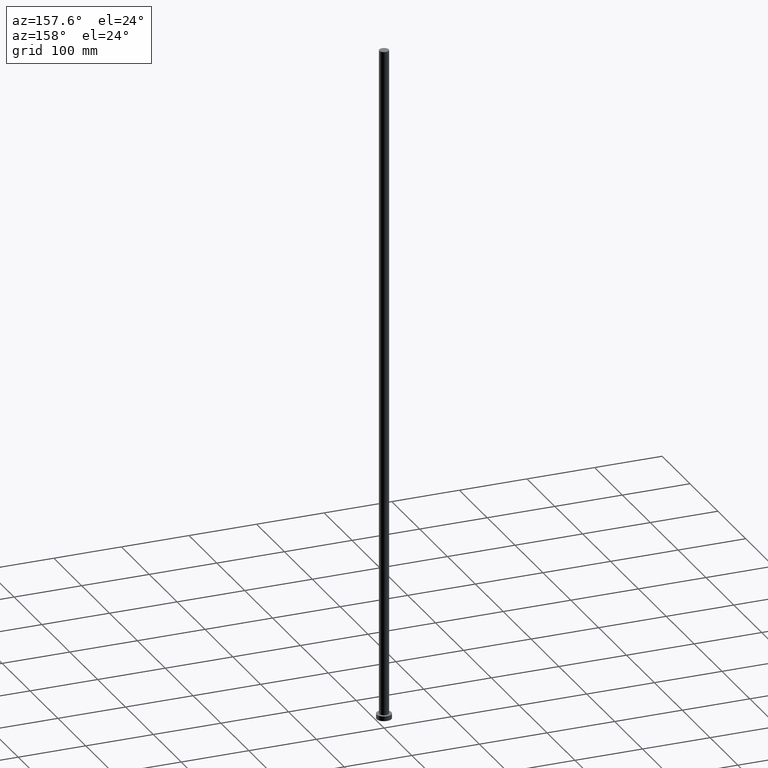
[diagram: clean part render]
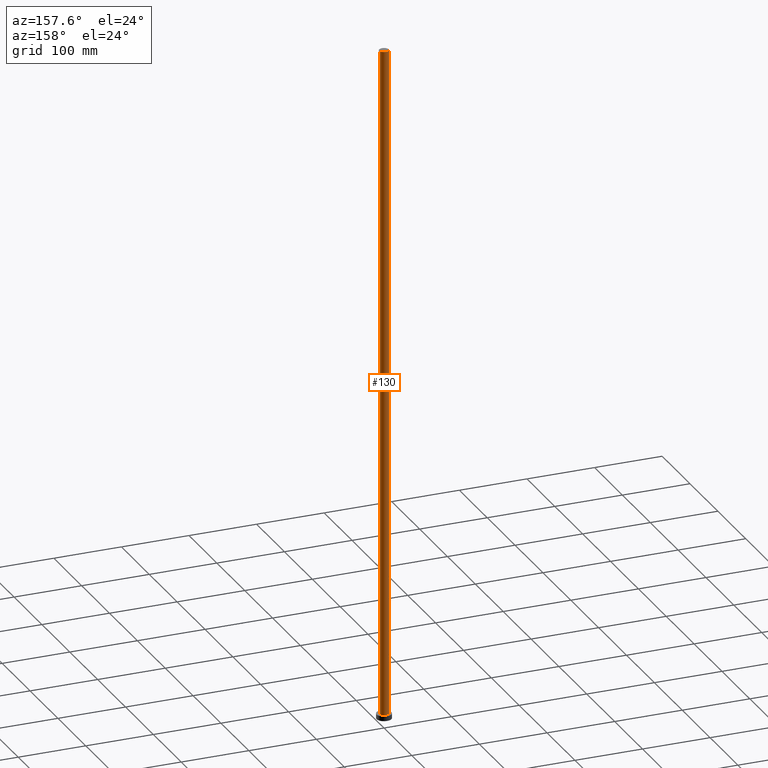
[diagram: same view with one face highlighted and labeled with its STEP entity id]
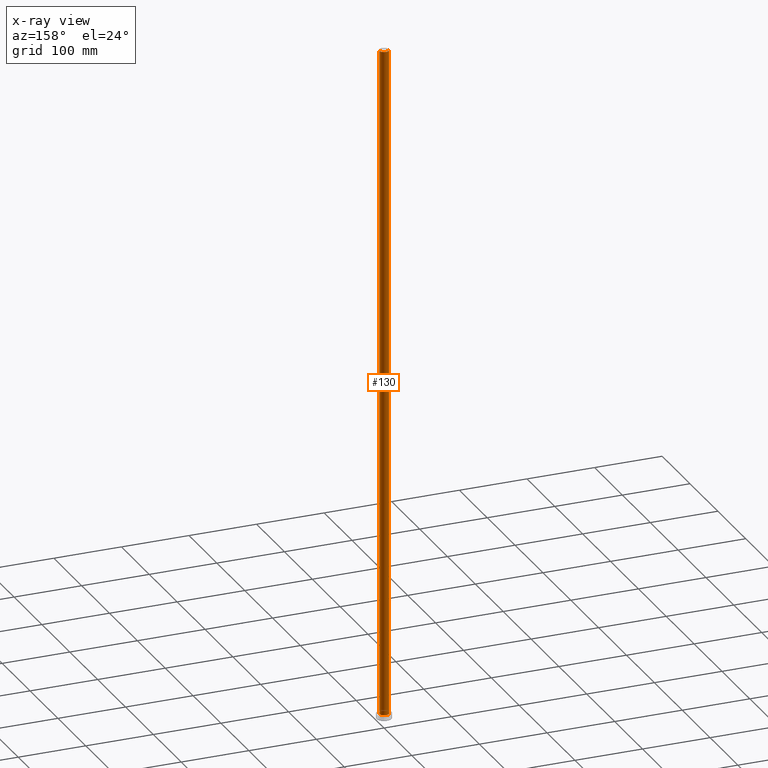
[diagram: x-ray of the same camera — body ghosted, the highlighted face saturated]
A machine part, auxiliary view. The second image highlights one B-rep face of the part: STEP entity #130.
The next image is the same camera in x-ray: the body ghosted, the highlighted face saturated — about 0% of this face is hidden behind the body in this view.
In plain terms, the highlighted cylindrical surface (edge-blend (fillet) strip) has radius 7 mm, axis along (-0, -0, -1).
Its self-contained STEP definition (entity closure, byte-faithful):
#2 = DIRECTION ( 'NONE',  ( -0.000000000000000000, -0.000000000000000000, -1.000000000000000000 ) ) ;
#14 = CIRCLE ( 'NONE', #230, 7.000000000000000888 ) ;
#30 = ORIENTED_EDGE ( 'NONE', *, *, #178, .F. ) ;
#34 = CIRCLE ( 'NONE', #177, 7.000000000000000888 ) ;
#36 = EDGE_CURVE ( 'NONE', #116, #94, #14, .T. ) ;
#68 = CYLINDRICAL_SURFACE ( 'NONE', #92, 7.000000000000000888 ) ;
#69 = VECTOR ( 'NONE', #2, 1000.000000000000000 ) ;
#71 = DIRECTION ( 'NONE',  ( -1.000000000000000000, 0.000000000000000000, 0.000000000000000000 ) ) ;
#82 = DIRECTION ( 'NONE',  ( -0.000000000000000000, -0.000000000000000000, -1.000000000000000000 ) ) ;
#83 = DIRECTION ( 'NONE',  ( 0.000000000000000000, 0.000000000000000000, 1.000000000000000000 ) ) ;
#87 = DIRECTION ( 'NONE',  ( 0.000000000000000000, 0.000000000000000000, 1.000000000000000000 ) ) ;
#92 = AXIS2_PLACEMENT_3D ( 'NONE', #220, #243, #71 ) ;
#93 = DIRECTION ( 'NONE',  ( 1.000000000000000000, 0.000000000000000000, 0.000000000000000000 ) ) ;
#94 = VERTEX_POINT ( 'NONE', #239 ) ;
#100 = EDGE_CURVE ( 'NONE', #185, #94, #122, .T. ) ;
#116 = VERTEX_POINT ( 'NONE', #237 ) ;
#122 = LINE ( 'NONE', #179, #69 ) ;
#130 = ADVANCED_FACE ( 'NONE', ( #198 ), #68, .T. ) ;
#134 = CARTESIAN_POINT ( 'NONE',  ( 0.000000000000000000, 0.000000000000000000, 7.000000000000000000 ) ) ;
#144 = ORIENTED_EDGE ( 'NONE', *, *, #100, .F. ) ;
#159 = CARTESIAN_POINT ( 'NONE',  ( 7.000000000000000888, 8.572527594031474176E-16, 1000.000000000000000 ) ) ;
#164 = CARTESIAN_POINT ( 'NONE',  ( -7.000000000000000888, 0.000000000000000000, 1000.000000000000000 ) ) ;
#177 = AXIS2_PLACEMENT_3D ( 'NONE', #223, #87, #93 ) ;
#178 = EDGE_CURVE ( 'NONE', #188, #185, #34, .T. ) ;
#179 = CARTESIAN_POINT ( 'NONE',  ( -7.000000000000000888, 0.000000000000000000, 1000.000000000000000 ) ) ;
#185 = VERTEX_POINT ( 'NONE', #164 ) ;
#188 = VERTEX_POINT ( 'NONE', #159 ) ;
#191 = LINE ( 'NONE', #252, #231 ) ;
#196 = DIRECTION ( 'NONE',  ( 1.000000000000000000, 0.000000000000000000, 0.000000000000000000 ) ) ;
#198 = FACE_OUTER_BOUND ( 'NONE', #229, .T. ) ;
#203 = EDGE_CURVE ( 'NONE', #188, #116, #191, .T. ) ;
#220 = CARTESIAN_POINT ( 'NONE',  ( 0.000000000000000000, 0.000000000000000000, 1000.000000000000000 ) ) ;
#223 = CARTESIAN_POINT ( 'NONE',  ( 0.000000000000000000, 0.000000000000000000, 1000.000000000000000 ) ) ;
#224 = ORIENTED_EDGE ( 'NONE', *, *, #36, .T. ) ;
#229 = EDGE_LOOP ( 'NONE', ( #30, #245, #224, #144 ) ) ;
#230 = AXIS2_PLACEMENT_3D ( 'NONE', #134, #83, #196 ) ;
#231 = VECTOR ( 'NONE', #82, 1000.000000000000000 ) ;
#237 = CARTESIAN_POINT ( 'NONE',  ( 7.000000000000000888, 8.572527594031474176E-16, 7.000000000000000000 ) ) ;
#239 = CARTESIAN_POINT ( 'NONE',  ( -7.000000000000000888, 0.000000000000000000, 7.000000000000000000 ) ) ;
#243 = DIRECTION ( 'NONE',  ( -0.000000000000000000, -0.000000000000000000, -1.000000000000000000 ) ) ;
#245 = ORIENTED_EDGE ( 'NONE', *, *, #203, .T. ) ;
#252 = CARTESIAN_POINT ( 'NONE',  ( 7.000000000000000888, 8.572527594031474176E-16, 1000.000000000000000 ) ) ;